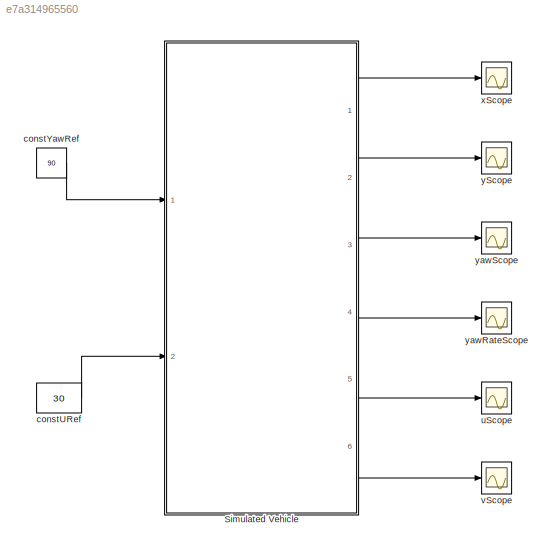
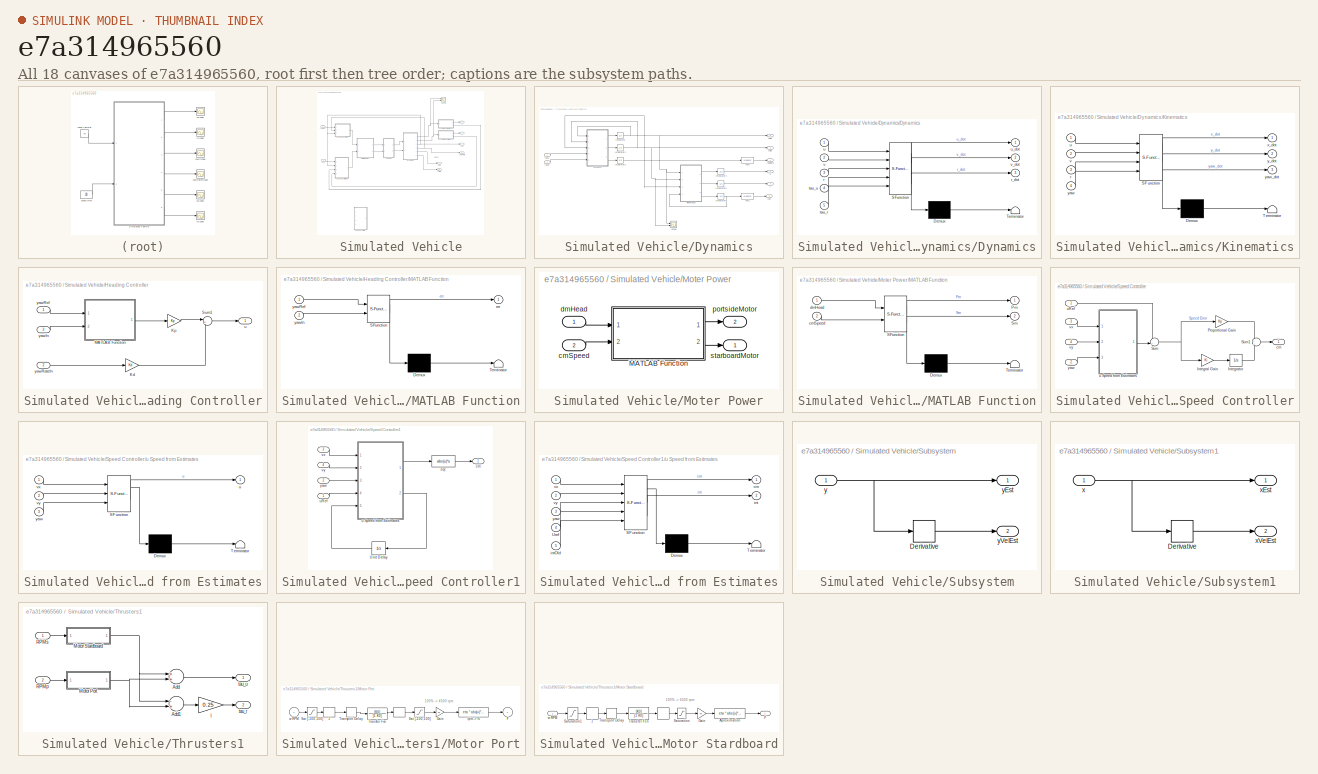
[diagram: thumbnail index - all 18 canvases of the model, root first then tree order]
MODEL slx_e7a314965560
KIND model
CONFIG AbsTol = auto
CONFIG EnableMultiTasking = off
CONFIG FixedStep = auto
CONFIG MaxStep = auto
CONFIG MinStep = auto
CONFIG RelTol = 1e-3
CONFIG SampleTimeConstraint = Unconstrained
CONFIG Solver = VariableStepAuto
CONFIG SolverName = VariableStepAuto
CONFIG StartTime = 0.0
CONFIG StopTime = 720
BLOCK [SubSystem] Simulated Vehicle
  Ports = [2, 6]
  RequestExecContextInheritance = off
  Variant = off
BLOCK [SubSystem] Simulated Vehicle/Dynamics
  Ports = [2, 6]
  RequestExecContextInheritance = off
  Variant = off
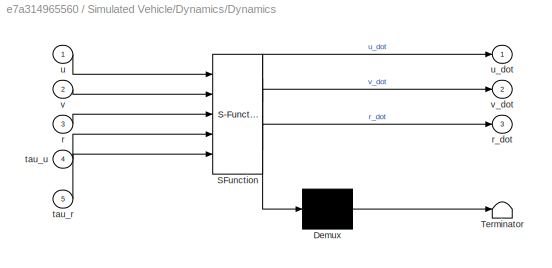
BLOCK [SubSystem] Simulated Vehicle/Dynamics/Dynamics
  ErrorFcn = Stateflow.Translate.translate
  PermitHierarchicalResolution = ExplicitOnly
  Ports = [5, 3]
  RequestExecContextInheritance = off
  SFBlockType = MATLAB Function
  TreatAsAtomicUnit = on
  Variant = off
BLOCK [Demux] Simulated Vehicle/Dynamics/Dynamics/ Demux 
  Outputs = 1
  Ports = [1, 1]
BLOCK [S-Function] Simulated Vehicle/Dynamics/Dynamics/ SFunction 
  EnableBusSupport = on
  FunctionName = sf_sfun
  PortCounts = [5 4]
  Ports = [5, 4]
  SFcnIsStateOwnerBlock = off
  SFunctionDeploymentMode = off
  Tag = Stateflow S-Function MyMedusaInnerLoop 2
BLOCK [Terminator] Simulated Vehicle/Dynamics/Dynamics/ Terminator 
BLOCK [Inport] Simulated Vehicle/Dynamics/Dynamics/r
  IconDisplay = Port number
  Port = 3
BLOCK [Outport] Simulated Vehicle/Dynamics/Dynamics/r_dot
  IconDisplay = Port number
  Port = 3
BLOCK [Inport] Simulated Vehicle/Dynamics/Dynamics/tau_r
  IconDisplay = Port number
  Port = 5
BLOCK [Inport] Simulated Vehicle/Dynamics/Dynamics/tau_u
  IconDisplay = Port number
  Port = 4
BLOCK [Inport] Simulated Vehicle/Dynamics/Dynamics/u
  IconDisplay = Port number
BLOCK [Outport] Simulated Vehicle/Dynamics/Dynamics/u_dot
  IconDisplay = Port number
BLOCK [Inport] Simulated Vehicle/Dynamics/Dynamics/v
  IconDisplay = Port number
  Port = 2
BLOCK [Outport] Simulated Vehicle/Dynamics/Dynamics/v_dot
  IconDisplay = Port number
  Port = 2
BLOCK [Fcn] Simulated Vehicle/Dynamics/Fcn1
  Expr = u*180/pi
BLOCK [Fcn] Simulated Vehicle/Dynamics/Fcn2
  Expr = u*180/pi
BLOCK [Integrator] Simulated Vehicle/Dynamics/Integrator
  Ports = [1, 1]
BLOCK [Integrator] Simulated Vehicle/Dynamics/Integrator1
  Ports = [1, 1]
BLOCK [Integrator] Simulated Vehicle/Dynamics/Integrator2
  Ports = [1, 1]
BLOCK [Integrator] Simulated Vehicle/Dynamics/Integrator4
  Ports = [1, 1]
BLOCK [Integrator] Simulated Vehicle/Dynamics/Integrator5
  Ports = [1, 1]
BLOCK [Integrator] Simulated Vehicle/Dynamics/Integrator6
  Ports = [1, 1]
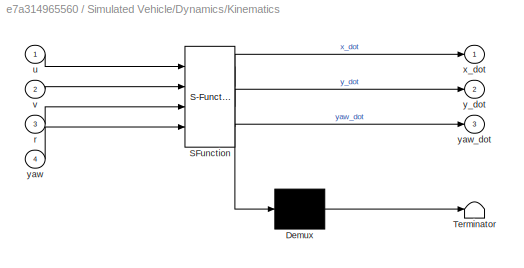
BLOCK [SubSystem] Simulated Vehicle/Dynamics/Kinematics
  ErrorFcn = Stateflow.Translate.translate
  PermitHierarchicalResolution = ExplicitOnly
  Ports = [4, 3]
  RequestExecContextInheritance = off
  SFBlockType = MATLAB Function
  TreatAsAtomicUnit = on
  Variant = off
BLOCK [Demux] Simulated Vehicle/Dynamics/Kinematics/ Demux 
  Outputs = 1
  Ports = [1, 1]
BLOCK [S-Function] Simulated Vehicle/Dynamics/Kinematics/ SFunction 
  EnableBusSupport = on
  FunctionName = sf_sfun
  PortCounts = [4 4]
  Ports = [4, 4]
  SFcnIsStateOwnerBlock = off
  SFunctionDeploymentMode = off
  Tag = Stateflow S-Function MyMedusaInnerLoop 1
BLOCK [Terminator] Simulated Vehicle/Dynamics/Kinematics/ Terminator 
BLOCK [Inport] Simulated Vehicle/Dynamics/Kinematics/r
  IconDisplay = Port number
  Port = 3
BLOCK [Inport] Simulated Vehicle/Dynamics/Kinematics/u
  IconDisplay = Port number
BLOCK [Inport] Simulated Vehicle/Dynamics/Kinematics/v
  IconDisplay = Port number
  Port = 2
BLOCK [Outport] Simulated Vehicle/Dynamics/Kinematics/x_dot
  IconDisplay = Port number
BLOCK [Outport] Simulated Vehicle/Dynamics/Kinematics/y_dot
  IconDisplay = Port number
  Port = 2
BLOCK [Inport] Simulated Vehicle/Dynamics/Kinematics/yaw
  IconDisplay = Port number
  Port = 4
BLOCK [Outport] Simulated Vehicle/Dynamics/Kinematics/yaw_dot
  IconDisplay = Port number
  Port = 3
BLOCK [Scope] Simulated Vehicle/Dynamics/Scope
  NumInputPorts = 2
  Ports = [2]
  ScopeSpecificationString = Simulink.scopes.TimeScopeBlockCfg('CurrentConfiguration', extmgr.ConfigurationSet(extmgr.Configuration('Core','General UI',true),extmgr.Configuration('Core','Source UI',true),extmgr.Configuration('Sources','WiredSimulink',true,'DataLoggingVariableName','ScopeData1'),extmgr.Configuration('Visuals','Time Domain',true,'SerializedDisplays',{struct('MinYLimReal','-0.35776','MaxYLimReal','1.16677','YLab...<+1438ch>
BLOCK [Inport] Simulated Vehicle/Dynamics/tauR
  IconDisplay = Port number
  Port = 2
BLOCK [Inport] Simulated Vehicle/Dynamics/tauU
  IconDisplay = Port number
BLOCK [Outport] Simulated Vehicle/Dynamics/uSim
  IconDisplay = Port number
  Port = 5
BLOCK [Outport] Simulated Vehicle/Dynamics/vSim
  IconDisplay = Port number
  Port = 6
BLOCK [Outport] Simulated Vehicle/Dynamics/x
  IconDisplay = Port number
BLOCK [Outport] Simulated Vehicle/Dynamics/y
  IconDisplay = Port number
  Port = 2
BLOCK [Outport] Simulated Vehicle/Dynamics/yaw
  IconDisplay = Port number
  Port = 3
BLOCK [Outport] Simulated Vehicle/Dynamics/yawRate
  IconDisplay = Port number
  Port = 4
BLOCK [SubSystem] Simulated Vehicle/Heading Controller
  Ports = [3, 1]
  RequestExecContextInheritance = off
  Variant = off
BLOCK [Gain] Simulated Vehicle/Heading Controller/Kd
  Gain = Kd
  OutDataTypeStr = Inherit: Inherit via internal rule
  ParamDataTypeStr = Inherit: Inherit via internal rule
  SaturateOnIntegerOverflow = off
BLOCK [Gain] Simulated Vehicle/Heading Controller/Kp
  Gain = Kp
  OutDataTypeStr = Inherit: Inherit via internal rule
  ParamDataTypeStr = Inherit: Inherit via internal rule
  SaturateOnIntegerOverflow = off
BLOCK [SubSystem] Simulated Vehicle/Heading Controller/MATLAB Function
  ErrorFcn = Stateflow.Translate.translate
  PermitHierarchicalResolution = ExplicitOnly
  Ports = [2, 1]
  RequestExecContextInheritance = off
  SFBlockType = MATLAB Function
  TreatAsAtomicUnit = on
  Variant = off
BLOCK [Demux] Simulated Vehicle/Heading Controller/MATLAB Function/ Demux 
  Outputs = 1
  Ports = [1, 1]
BLOCK [S-Function] Simulated Vehicle/Heading Controller/MATLAB Function/ SFunction 
  EnableBusSupport = on
  FunctionName = sf_sfun
  PortCounts = [2 2]
  Ports = [2, 2]
  SFcnIsStateOwnerBlock = off
  SFunctionDeploymentMode = off
  Tag = Stateflow S-Function MyMedusaInnerLoop 5
BLOCK [Terminator] Simulated Vehicle/Heading Controller/MATLAB Function/ Terminator 
BLOCK [Outport] Simulated Vehicle/Heading Controller/MATLAB Function/err
  IconDisplay = Port number
BLOCK [Inport] Simulated Vehicle/Heading Controller/MATLAB Function/yawIn
  IconDisplay = Port number
  Port = 2
BLOCK [Inport] Simulated Vehicle/Heading Controller/MATLAB Function/yawRef
  IconDisplay = Port number
BLOCK [Sum] Simulated Vehicle/Heading Controller/Sum1
  IconShape = round
  InputSameDT = off
  Inputs = |+-
  OutDataTypeStr = Inherit: Inherit via internal rule
  Ports = [2, 1]
  SaturateOnIntegerOverflow = off
BLOCK [Outport] Simulated Vehicle/Heading Controller/u
  IconDisplay = Port number
BLOCK [Inport] Simulated Vehicle/Heading Controller/yawIn
  IconDisplay = Port number
  Port = 3
BLOCK [Inport] Simulated Vehicle/Heading Controller/yawRateIn
  IconDisplay = Port number
  Port = 2
BLOCK [Inport] Simulated Vehicle/Heading Controller/yawRef
  IconDisplay = Port number
BLOCK [SubSystem] Simulated Vehicle/Moter Power
  Ports = [2, 2]
  RequestExecContextInheritance = off
  Variant = off
BLOCK [SubSystem] Simulated Vehicle/Moter Power/MATLAB Function
  ErrorFcn = Stateflow.Translate.translate
  PermitHierarchicalResolution = ExplicitOnly
  Ports = [2, 2]
  RequestExecContextInheritance = off
  SFBlockType = MATLAB Function
  TreatAsAtomicUnit = on
  Variant = off
BLOCK [Demux] Simulated Vehicle/Moter Power/MATLAB Function/ Demux 
  Outputs = 1
  Ports = [1, 1]
BLOCK [S-Function] Simulated Vehicle/Moter Power/MATLAB Function/ SFunction 
  EnableBusSupport = on
  FunctionName = sf_sfun
  PortCounts = [2 3]
  Ports = [2, 3]
  SFcnIsStateOwnerBlock = off
  SFunctionDeploymentMode = off
  Tag = Stateflow S-Function MyMedusaInnerLoop 4
BLOCK [Terminator] Simulated Vehicle/Moter Power/MATLAB Function/ Terminator 
BLOCK [Outport] Simulated Vehicle/Moter Power/MATLAB Function/Pm
  IconDisplay = Port number
BLOCK [Outport] Simulated Vehicle/Moter Power/MATLAB Function/Sm
  IconDisplay = Port number
  Port = 2
BLOCK [Inport] Simulated Vehicle/Moter Power/MATLAB Function/cmSpeed
  IconDisplay = Port number
  Port = 2
BLOCK [Inport] Simulated Vehicle/Moter Power/MATLAB Function/dmHead
  IconDisplay = Port number
BLOCK [Inport] Simulated Vehicle/Moter Power/cmSpeed
  IconDisplay = Port number
  Port = 2
BLOCK [Inport] Simulated Vehicle/Moter Power/dmHead
  IconDisplay = Port number
BLOCK [Outport] Simulated Vehicle/Moter Power/portsideMotor
  IconDisplay = Port number
  Port = 2
BLOCK [Outport] Simulated Vehicle/Moter Power/starboardMotor
  IconDisplay = Port number
BLOCK [Scope] Simulated Vehicle/Scope
  NumInputPorts = 2
  Ports = [2]
  ScopeSpecificationString = Simulink.scopes.TimeScopeBlockCfg('CurrentConfiguration', extmgr.ConfigurationSet(extmgr.Configuration('Core','General UI',true),extmgr.Configuration('Core','Source UI',true),extmgr.Configuration('Sources','WiredSimulink',true,'DataLoggingVariableName','ScopeData2'),extmgr.Configuration('Visuals','Time Domain',true,'SerializedDisplays',{struct('MinYLimReal','-90.83707','MaxYLimReal','817.53361','Y...<+1409ch>
BLOCK [SubSystem] Simulated Vehicle/Speed Controller
  Commented = on
  Ports = [4, 1]
  RequestExecContextInheritance = off
  Variant = off
BLOCK [Gain] Simulated Vehicle/Speed Controller/Integral Gain
  Gain = Ki
  OutDataTypeStr = Inherit: Inherit via internal rule
  ParamDataTypeStr = Inherit: Inherit via internal rule
  SaturateOnIntegerOverflow = off
BLOCK [Integrator] Simulated Vehicle/Speed Controller/Integrator
  Ports = [1, 1]
BLOCK [Gain] Simulated Vehicle/Speed Controller/Proportional Gain
  Gain = Kp
  OutDataTypeStr = Inherit: Inherit via internal rule
  ParamDataTypeStr = Inherit: Inherit via internal rule
  SaturateOnIntegerOverflow = off
BLOCK [Sum] Simulated Vehicle/Speed Controller/Sum
  IconShape = round
  InputSameDT = off
  Inputs = -+|
  OutDataTypeStr = Inherit: Inherit via internal rule
  Ports = [2, 1]
  SaturateOnIntegerOverflow = off
BLOCK [Sum] Simulated Vehicle/Speed Controller/Sum1
  IconShape = round
  InputSameDT = off
  Inputs = +|+
  OutDataTypeStr = Inherit: Inherit via internal rule
  Ports = [2, 1]
  SaturateOnIntegerOverflow = off
BLOCK [Outport] Simulated Vehicle/Speed Controller/cm
  IconDisplay = Port number
BLOCK [SubSystem] Simulated Vehicle/Speed Controller/u Speed from Estimates
  ErrorFcn = Stateflow.Translate.translate
  PermitHierarchicalResolution = ExplicitOnly
  Ports = [3, 1]
  RequestExecContextInheritance = off
  SFBlockType = MATLAB Function
  TreatAsAtomicUnit = on
  Variant = off
BLOCK [Demux] Simulated Vehicle/Speed Controller/u Speed from Estimates/ Demux 
  Outputs = 1
  Ports = [1, 1]
BLOCK [S-Function] Simulated Vehicle/Speed Controller/u Speed from Estimates/ SFunction 
  EnableBusSupport = on
  FunctionName = sf_sfun
  PortCounts = [3 2]
  Ports = [3, 2]
  SFcnIsStateOwnerBlock = off
  SFunctionDeploymentMode = off
  Tag = Stateflow S-Function MyMedusaInnerLoop 6
BLOCK [Terminator] Simulated Vehicle/Speed Controller/u Speed from Estimates/ Terminator 
BLOCK [Outport] Simulated Vehicle/Speed Controller/u Speed from Estimates/u
  IconDisplay = Port number
BLOCK [Inport] Simulated Vehicle/Speed Controller/u Speed from Estimates/vx
  IconDisplay = Port number
BLOCK [Inport] Simulated Vehicle/Speed Controller/u Speed from Estimates/vy
  IconDisplay = Port number
  Port = 2
BLOCK [Inport] Simulated Vehicle/Speed Controller/u Speed from Estimates/yaw
  IconDisplay = Port number
  Port = 3
BLOCK [Inport] Simulated Vehicle/Speed Controller/uRef
  IconDisplay = Port number
BLOCK [Inport] Simulated Vehicle/Speed Controller/vx
  IconDisplay = Port number
  Port = 3
BLOCK [Inport] Simulated Vehicle/Speed Controller/vy
  IconDisplay = Port number
  Port = 4
BLOCK [Inport] Simulated Vehicle/Speed Controller/yaw
  IconDisplay = Port number
  Port = 2
BLOCK [SubSystem] Simulated Vehicle/Speed Controller1
  Ports = [4, 1]
  RequestExecContextInheritance = off
  Variant = off
BLOCK [UnitDelay] Simulated Vehicle/Speed Controller1/Unit Delay
  SampleTime = -1
BLOCK [Outport] Simulated Vehicle/Speed Controller1/cm
  IconDisplay = Port number
BLOCK [Fcn] Simulated Vehicle/Speed Controller1/sqr
  Expr = abs(u)*u
BLOCK [SubSystem] Simulated Vehicle/Speed Controller1/u Speed from Estimates
  ErrorFcn = Stateflow.Translate.translate
  PermitHierarchicalResolution = ExplicitOnly
  Ports = [5, 2]
  RequestExecContextInheritance = off
  SFBlockType = MATLAB Function
  TreatAsAtomicUnit = on
  Variant = off
BLOCK [Demux] Simulated Vehicle/Speed Controller1/u Speed from Estimates/ Demux 
  Outputs = 1
  Ports = [1, 1]
BLOCK [S-Function] Simulated Vehicle/Speed Controller1/u Speed from Estimates/ SFunction 
  EnableBusSupport = on
  FunctionName = sf_sfun
  Parameters = KSat,Ki,Kp
  PortCounts = [5 3]
  Ports = [5, 3]
  SFcnIsStateOwnerBlock = off
  SFunctionDeploymentMode = off
  Tag = Stateflow S-Function MyMedusaInnerLoop 3
BLOCK [Terminator] Simulated Vehicle/Speed Controller1/u Speed from Estimates/ Terminator 
BLOCK [Inport] Simulated Vehicle/Speed Controller1/u Speed from Estimates/Uref
  IconDisplay = Port number
  Port = 4
BLOCK [Outport] Simulated Vehicle/Speed Controller1/u Speed from Estimates/cm
  IconDisplay = Port number
BLOCK [Outport] Simulated Vehicle/Speed Controller1/u Speed from Estimates/int
  IconDisplay = Port number
  Port = 2
BLOCK [Inport] Simulated Vehicle/Speed Controller1/u Speed from Estimates/intOld
  IconDisplay = Port number
  Port = 5
BLOCK [Inport] Simulated Vehicle/Speed Controller1/u Speed from Estimates/vx
  IconDisplay = Port number
BLOCK [Inport] Simulated Vehicle/Speed Controller1/u Speed from Estimates/vy
  IconDisplay = Port number
  Port = 2
BLOCK [Inport] Simulated Vehicle/Speed Controller1/u Speed from Estimates/yaw
  IconDisplay = Port number
  Port = 3
BLOCK [Inport] Simulated Vehicle/Speed Controller1/uRef
  IconDisplay = Port number
BLOCK [Inport] Simulated Vehicle/Speed Controller1/vx
  IconDisplay = Port number
  Port = 3
BLOCK [Inport] Simulated Vehicle/Speed Controller1/vy
  IconDisplay = Port number
  Port = 4
BLOCK [Inport] Simulated Vehicle/Speed Controller1/yaw
  IconDisplay = Port number
  Port = 2
BLOCK [SubSystem] Simulated Vehicle/Subsystem
  Ports = [1, 2]
  RequestExecContextInheritance = off
  Variant = off
BLOCK [Derivative] Simulated Vehicle/Subsystem/Derivative
BLOCK [Inport] Simulated Vehicle/Subsystem/y
  IconDisplay = Port number
BLOCK [Outport] Simulated Vehicle/Subsystem/yEst
  IconDisplay = Port number
BLOCK [Outport] Simulated Vehicle/Subsystem/yVelEst
  IconDisplay = Port number
  Port = 2
BLOCK [SubSystem] Simulated Vehicle/Subsystem1
  Ports = [1, 2]
  RequestExecContextInheritance = off
  Variant = off
BLOCK [Derivative] Simulated Vehicle/Subsystem1/Derivative
BLOCK [Inport] Simulated Vehicle/Subsystem1/x
  IconDisplay = Port number
BLOCK [Outport] Simulated Vehicle/Subsystem1/xEst
  IconDisplay = Port number
BLOCK [Outport] Simulated Vehicle/Subsystem1/xVelEst
  IconDisplay = Port number
  Port = 2
BLOCK [SubSystem] Simulated Vehicle/Thrusters1
  Ports = [2, 2]
  RequestExecContextInheritance = off
  Variant = off
BLOCK [Sum] Simulated Vehicle/Thrusters1/Add
  InputSameDT = off
  OutDataTypeStr = Inherit: Inherit via internal rule
  Ports = [2, 1]
  SaturateOnIntegerOverflow = off
BLOCK [Sum] Simulated Vehicle/Thrusters1/Add1
  InputSameDT = off
  Inputs = -+
  OutDataTypeStr = Inherit: Inherit via internal rule
  Ports = [2, 1]
  SaturateOnIntegerOverflow = off
BLOCK [SubSystem] Simulated Vehicle/Thrusters1/Motor Port
  Ports = [1, 1]
  RequestExecContextInheritance = off
  Variant = off
BLOCK [Rounding] Simulated Vehicle/Thrusters1/Motor Port/  
  Operator = round
BLOCK [Rounding] Simulated Vehicle/Thrusters1/Motor Port/  1
  Operator = round
BLOCK [Outport] Simulated Vehicle/Thrusters1/Motor Port/F
  IconDisplay = Port number
BLOCK [Gain] Simulated Vehicle/Thrusters1/Motor Port/Gain
  Gain = 45
  OutDataTypeStr = Inherit: Inherit via internal rule
  ParamDataTypeStr = Inherit: Inherit via internal rule
  SaturateOnIntegerOverflow = off
BLOCK [Saturate] Simulated Vehicle/Thrusters1/Motor Port/Sat [-100,100]
  InputPortMap = u0
  LowerLimit = -100
  Ports = [1, 1]
  UpperLimit = 100
BLOCK [Saturate] Simulated Vehicle/Thrusters1/Motor Port/Sat [-100,100] 
  InputPortMap = u0
  LowerLimit = -100
  Ports = [1, 1]
  UpperLimit = 100
BLOCK [TransferFcn] Simulated Vehicle/Thrusters1/Motor Port/Transfer Fcn
  Denominator = [1 K0]
  Numerator = [K0]
BLOCK [TransportDelay] Simulated Vehicle/Thrusters1/Motor Port/Transport Delay
  DelayTime = tau
  Ports = [1, 1]
BLOCK [Fcn] Simulated Vehicle/Thrusters1/Motor Port/rpm -> N
  Expr = eta * abs(u)* u
BLOCK [Inport] Simulated Vehicle/Thrusters1/Motor Port/w RPM
  IconDisplay = Port number
BLOCK [SubSystem] Simulated Vehicle/Thrusters1/Motor Stardboard
  Ports = [1, 1]
  RequestExecContextInheritance = off
  Variant = off
BLOCK [Rounding] Simulated Vehicle/Thrusters1/Motor Stardboard/  
  Operator = round
BLOCK [Rounding] Simulated Vehicle/Thrusters1/Motor Stardboard/  1
  Operator = round
BLOCK [Fcn] Simulated Vehicle/Thrusters1/Motor Stardboard/Aproximation
  Expr = eta * abs(u)* u
BLOCK [Outport] Simulated Vehicle/Thrusters1/Motor Stardboard/F
  IconDisplay = Port number
BLOCK [Gain] Simulated Vehicle/Thrusters1/Motor Stardboard/Gain
  Gain = 45
  OutDataTypeStr = Inherit: Inherit via internal rule
  ParamDataTypeStr = Inherit: Inherit via internal rule
  SaturateOnIntegerOverflow = off
BLOCK [Saturate] Simulated Vehicle/Thrusters1/Motor Stardboard/Saturation
  InputPortMap = u0
  LowerLimit = -100
  Ports = [1, 1]
  UpperLimit = 100
BLOCK [Saturate] Simulated Vehicle/Thrusters1/Motor Stardboard/Saturation1
  InputPortMap = u0
  LowerLimit = -100
  Ports = [1, 1]
  UpperLimit = 100
BLOCK [TransferFcn] Simulated Vehicle/Thrusters1/Motor Stardboard/Transfer Fcn
  Denominator = [1 K0]
  Numerator = [K0]
BLOCK [TransportDelay] Simulated Vehicle/Thrusters1/Motor Stardboard/Transport Delay
  DelayTime = tau
  Ports = [1, 1]
BLOCK [Inport] Simulated Vehicle/Thrusters1/Motor Stardboard/w RPM
  IconDisplay = Port number
BLOCK [Inport] Simulated Vehicle/Thrusters1/RPMp
  IconDisplay = Port number
  Port = 2
BLOCK [Inport] Simulated Vehicle/Thrusters1/RPMs
  IconDisplay = Port number
BLOCK [Gain] Simulated Vehicle/Thrusters1/l
  Gain = 0.25
  OutDataTypeStr = Inherit: Inherit via internal rule
  ParamDataTypeStr = Inherit: Inherit via internal rule
  SaturateOnIntegerOverflow = off
BLOCK [Outport] Simulated Vehicle/Thrusters1/tau_r
  IconDisplay = Port number
  Port = 2
BLOCK [Outport] Simulated Vehicle/Thrusters1/tau_u
  IconDisplay = Port number
BLOCK [Inport] Simulated Vehicle/uRef
  IconDisplay = Port number
  Port = 2
BLOCK [Outport] Simulated Vehicle/uSim
  IconDisplay = Port number
  Port = 5
BLOCK [Outport] Simulated Vehicle/vSim
  IconDisplay = Port number
  Port = 6
BLOCK [Outport] Simulated Vehicle/x
  IconDisplay = Port number
BLOCK [Outport] Simulated Vehicle/y
  IconDisplay = Port number
  Port = 2
BLOCK [Outport] Simulated Vehicle/yaw
  IconDisplay = Port number
  Port = 3
BLOCK [Outport] Simulated Vehicle/yawRate
  IconDisplay = Port number
  Port = 4
BLOCK [Inport] Simulated Vehicle/yawRef
  IconDisplay = Port number
BLOCK [Constant] constURef
  Value = 30
BLOCK [Constant] constYawRef
  Value = 90
BLOCK [Scope] uScope
  NumInputPorts = 1
  Ports = [1]
  ScopeSpecificationString = Simulink.scopes.TimeScopeBlockCfg('CurrentConfiguration', extmgr.ConfigurationSet(extmgr.Configuration('Core','General UI',true),extmgr.Configuration('Core','Source UI',true),extmgr.Configuration('Sources','WiredSimulink',true,'DataLoggingVariableName','ScopeData4','DataLoggingLimitDataPoints',true,'DataLoggingSaveFormat','Array','DataLoggingDecimation','1','DataLoggingDecimateData',true),extmgr.C...<+1503ch>
BLOCK [Scope] vScope
  NumInputPorts = 1
  Ports = [1]
  ScopeSpecificationString = Simulink.scopes.TimeScopeBlockCfg('CurrentConfiguration', extmgr.ConfigurationSet(extmgr.Configuration('Core','General UI',true),extmgr.Configuration('Core','Source UI',true),extmgr.Configuration('Sources','WiredSimulink',true,'DataLoggingVariableName','ScopeData5','DataLoggingLimitDataPoints',true,'DataLoggingSaveFormat','Array','DataLoggingDecimation','1','DataLoggingDecimateData',true),extmgr.C...<+1499ch>
BLOCK [Scope] xScope
  NumInputPorts = 1
  Ports = [1]
  ScopeSpecificationString = Simulink.scopes.TimeScopeBlockCfg('CurrentConfiguration', extmgr.ConfigurationSet(extmgr.Configuration('Core','General UI',true),extmgr.Configuration('Core','Source UI',true),extmgr.Configuration('Sources','WiredSimulink',true,'DataLoggingLimitDataPoints',true,'DataLoggingSaveFormat','Array','DataLoggingDecimation','1','DataLoggingDecimateData',true),extmgr.Configuration('Visuals','Time Domain',tr...<+1530ch>
BLOCK [Scope] yScope
  NumInputPorts = 1
  Ports = [1]
  ScopeSpecificationString = Simulink.scopes.TimeScopeBlockCfg('CurrentConfiguration', extmgr.ConfigurationSet(extmgr.Configuration('Core','General UI',true),extmgr.Configuration('Core','Source UI',true),extmgr.Configuration('Sources','WiredSimulink',true,'DataLoggingVariableName','ScopeData1','DataLoggingLimitDataPoints',true,'DataLoggingSaveFormat','Array','DataLoggingDecimation','1','DataLoggingDecimateData',true),extmgr.C...<+1513ch>
BLOCK [Scope] yawRateScope
  NumInputPorts = 1
  Ports = [1]
  ScopeSpecificationString = Simulink.scopes.TimeScopeBlockCfg('CurrentConfiguration', extmgr.ConfigurationSet(extmgr.Configuration('Core','General UI',true),extmgr.Configuration('Core','Source UI',true),extmgr.Configuration('Sources','WiredSimulink',true,'DataLoggingVariableName','ScopeData3','DataLoggingLimitDataPoints',true,'DataLoggingSaveFormat','Array','DataLoggingDecimation','1','DataLoggingDecimateData',true),extmgr.C...<+1507ch>
BLOCK [Scope] yawScope
  NumInputPorts = 1
  Ports = [1]
  ScopeSpecificationString = Simulink.scopes.TimeScopeBlockCfg('CurrentConfiguration', extmgr.ConfigurationSet(extmgr.Configuration('Core','General UI',true),extmgr.Configuration('Core','Source UI',true),extmgr.Configuration('Sources','WiredSimulink',true,'DataLoggingVariableName','ScopeData2','DataLoggingLimitDataPoints',true,'DataLoggingSaveFormat','Array','DataLoggingDecimation','1','DataLoggingDecimateData',true),extmgr.C...<+1538ch>
ANNOTATION Simulated Vehicle: Sim Only
ANNOTATION Simulated Vehicle/Thrusters1/Motor Port: 100% -> 4500 rpm
ANNOTATION Simulated Vehicle/Thrusters1/Motor Stardboard: 100% -> 4500 rpm
LINE Simulated Vehicle/Dynamics/Dynamics:1 -> Simulated Vehicle/Dynamics/Integrator:1
LINE Simulated Vehicle/Dynamics/Dynamics:2 -> Simulated Vehicle/Dynamics/Integrator1:1
LINE Simulated Vehicle/Dynamics/Dynamics:3 -> Simulated Vehicle/Dynamics/Integrator2:1
LINE Simulated Vehicle/Dynamics/Fcn1:1 -> Simulated Vehicle/Dynamics/yaw:1
LINE Simulated Vehicle/Dynamics/Fcn2:1 -> Simulated Vehicle/Dynamics/yawRate:1
NET Simulated Vehicle/Dynamics/Integrator1:1 -> Simulated Vehicle/Dynamics/Dynamics:2, Simulated Vehicle/Dynamics/Kinematics:2, Simulated Vehicle/Dynamics/Scope:2, Simulated Vehicle/Dynamics/vSim:1
NET Simulated Vehicle/Dynamics/Integrator2:1 -> Simulated Vehicle/Dynamics/Dynamics:3, Simulated Vehicle/Dynamics/Fcn2:1, Simulated Vehicle/Dynamics/Kinematics:3
LINE Simulated Vehicle/Dynamics/Integrator4:1 -> Simulated Vehicle/Dynamics/x:1
LINE Simulated Vehicle/Dynamics/Integrator5:1 -> Simulated Vehicle/Dynamics/y:1
NET Simulated Vehicle/Dynamics/Integrator6:1 -> Simulated Vehicle/Dynamics/Fcn1:1, Simulated Vehicle/Dynamics/Kinematics:4
NET Simulated Vehicle/Dynamics/Integrator:1 -> Simulated Vehicle/Dynamics/Dynamics:1, Simulated Vehicle/Dynamics/Kinematics:1, Simulated Vehicle/Dynamics/Scope:1, Simulated Vehicle/Dynamics/uSim:1
LINE Simulated Vehicle/Dynamics/Kinematics:1 -> Simulated Vehicle/Dynamics/Integrator4:1
LINE Simulated Vehicle/Dynamics/Kinematics:2 -> Simulated Vehicle/Dynamics/Integrator5:1
LINE Simulated Vehicle/Dynamics/Kinematics:3 -> Simulated Vehicle/Dynamics/Integrator6:1
LINE Simulated Vehicle/Dynamics/tauR:1 -> Simulated Vehicle/Dynamics/Dynamics:5
LINE Simulated Vehicle/Dynamics/tauU:1 -> Simulated Vehicle/Dynamics/Dynamics:4
NET Simulated Vehicle/Dynamics:1 -> Simulated Vehicle/Scope:1, Simulated Vehicle/Subsystem1:1
NET Simulated Vehicle/Dynamics:2 -> Simulated Vehicle/Scope:2, Simulated Vehicle/Subsystem:1
NET Simulated Vehicle/Dynamics:3 -> Simulated Vehicle/Heading Controller:3, Simulated Vehicle/Speed Controller1:2, Simulated Vehicle/yaw:1
NET Simulated Vehicle/Dynamics:4 -> Simulated Vehicle/Heading Controller:2, Simulated Vehicle/yawRate:1
LINE Simulated Vehicle/Dynamics:5 -> Simulated Vehicle/uSim:1
LINE Simulated Vehicle/Dynamics:6 -> Simulated Vehicle/vSim:1
LINE Simulated Vehicle/Heading Controller/Kd:1 -> Simulated Vehicle/Heading Controller/Sum1:2
LINE Simulated Vehicle/Heading Controller/Kp:1 -> Simulated Vehicle/Heading Controller/Sum1:1
LINE Simulated Vehicle/Heading Controller/MATLAB Function:1 -> Simulated Vehicle/Heading Controller/Kp:1
LINE Simulated Vehicle/Heading Controller/Sum1:1 -> Simulated Vehicle/Heading Controller/u:1
LINE Simulated Vehicle/Heading Controller/yawIn:1 -> Simulated Vehicle/Heading Controller/MATLAB Function:2
LINE Simulated Vehicle/Heading Controller/yawRateIn:1 -> Simulated Vehicle/Heading Controller/Kd:1
LINE Simulated Vehicle/Heading Controller/yawRef:1 -> Simulated Vehicle/Heading Controller/MATLAB Function:1
LINE Simulated Vehicle/Heading Controller:1 -> Simulated Vehicle/Moter Power:1
LINE Simulated Vehicle/Moter Power/MATLAB Function:1 -> Simulated Vehicle/Moter Power/portsideMotor:1
LINE Simulated Vehicle/Moter Power/MATLAB Function:2 -> Simulated Vehicle/Moter Power/starboardMotor:1
LINE Simulated Vehicle/Moter Power/cmSpeed:1 -> Simulated Vehicle/Moter Power/MATLAB Function:2
LINE Simulated Vehicle/Moter Power/dmHead:1 -> Simulated Vehicle/Moter Power/MATLAB Function:1
LINE Simulated Vehicle/Moter Power:1 -> Simulated Vehicle/Thrusters1:1
LINE Simulated Vehicle/Moter Power:2 -> Simulated Vehicle/Thrusters1:2
LINE Simulated Vehicle/Speed Controller/Integral Gain:1 -> Simulated Vehicle/Speed Controller/Integrator:1
LINE Simulated Vehicle/Speed Controller/Integrator:1 -> Simulated Vehicle/Speed Controller/Sum1:2
LINE Simulated Vehicle/Speed Controller/Proportional Gain:1 -> Simulated Vehicle/Speed Controller/Sum1:1
LINE Simulated Vehicle/Speed Controller/Sum1:1 -> Simulated Vehicle/Speed Controller/cm:1
NET Simulated Vehicle/Speed Controller/Sum:1 -> Simulated Vehicle/Speed Controller/Integral Gain:1, Simulated Vehicle/Speed Controller/Proportional Gain:1
LINE Simulated Vehicle/Speed Controller/u Speed from Estimates:1 -> Simulated Vehicle/Speed Controller/Sum:2
LINE Simulated Vehicle/Speed Controller/uRef:1 -> Simulated Vehicle/Speed Controller/Sum:1
LINE Simulated Vehicle/Speed Controller/vx:1 -> Simulated Vehicle/Speed Controller/u Speed from Estimates:1
LINE Simulated Vehicle/Speed Controller/vy:1 -> Simulated Vehicle/Speed Controller/u Speed from Estimates:2
LINE Simulated Vehicle/Speed Controller/yaw:1 -> Simulated Vehicle/Speed Controller/u Speed from Estimates:3
LINE Simulated Vehicle/Speed Controller1/Unit Delay:1 -> Simulated Vehicle/Speed Controller1/u Speed from Estimates:5
LINE Simulated Vehicle/Speed Controller1/sqr:1 -> Simulated Vehicle/Speed Controller1/cm:1
LINE Simulated Vehicle/Speed Controller1/u Speed from Estimates:1 -> Simulated Vehicle/Speed Controller1/sqr:1
LINE Simulated Vehicle/Speed Controller1/u Speed from Estimates:2 -> Simulated Vehicle/Speed Controller1/Unit Delay:1
LINE Simulated Vehicle/Speed Controller1/uRef:1 -> Simulated Vehicle/Speed Controller1/u Speed from Estimates:4
LINE Simulated Vehicle/Speed Controller1/vx:1 -> Simulated Vehicle/Speed Controller1/u Speed from Estimates:1
LINE Simulated Vehicle/Speed Controller1/vy:1 -> Simulated Vehicle/Speed Controller1/u Speed from Estimates:2
LINE Simulated Vehicle/Speed Controller1/yaw:1 -> Simulated Vehicle/Speed Controller1/u Speed from Estimates:3
LINE Simulated Vehicle/Speed Controller1:1 -> Simulated Vehicle/Moter Power:2
LINE Simulated Vehicle/Subsystem/Derivative:1 -> Simulated Vehicle/Subsystem/yVelEst:1
NET Simulated Vehicle/Subsystem/y:1 -> Simulated Vehicle/Subsystem/Derivative:1, Simulated Vehicle/Subsystem/yEst:1
LINE Simulated Vehicle/Subsystem1/Derivative:1 -> Simulated Vehicle/Subsystem1/xVelEst:1
NET Simulated Vehicle/Subsystem1/x:1 -> Simulated Vehicle/Subsystem1/Derivative:1, Simulated Vehicle/Subsystem1/xEst:1
LINE Simulated Vehicle/Subsystem1:1 -> Simulated Vehicle/x:1
LINE Simulated Vehicle/Subsystem1:2 -> Simulated Vehicle/Speed Controller1:3
LINE Simulated Vehicle/Subsystem:1 -> Simulated Vehicle/y:1
LINE Simulated Vehicle/Subsystem:2 -> Simulated Vehicle/Speed Controller1:4
LINE Simulated Vehicle/Thrusters1/Add1:1 -> Simulated Vehicle/Thrusters1/l:1
LINE Simulated Vehicle/Thrusters1/Add:1 -> Simulated Vehicle/Thrusters1/tau_u:1
LINE Simulated Vehicle/Thrusters1/Motor Port/  1:1 -> Simulated Vehicle/Thrusters1/Motor Port/Transport Delay:1
LINE Simulated Vehicle/Thrusters1/Motor Port/  :1 -> Simulated Vehicle/Thrusters1/Motor Port/Sat [-100,100] :1
LINE Simulated Vehicle/Thrusters1/Motor Port/Gain:1 -> Simulated Vehicle/Thrusters1/Motor Port/rpm -> N:1
LINE Simulated Vehicle/Thrusters1/Motor Port/Sat [-100,100] :1 -> Simulated Vehicle/Thrusters1/Motor Port/Gain:1
LINE Simulated Vehicle/Thrusters1/Motor Port/Sat [-100,100]:1 -> Simulated Vehicle/Thrusters1/Motor Port/  1:1
LINE Simulated Vehicle/Thrusters1/Motor Port/Transfer Fcn:1 -> Simulated Vehicle/Thrusters1/Motor Port/  :1
LINE Simulated Vehicle/Thrusters1/Motor Port/Transport Delay:1 -> Simulated Vehicle/Thrusters1/Motor Port/Transfer Fcn:1
LINE Simulated Vehicle/Thrusters1/Motor Port/rpm -> N:1 -> Simulated Vehicle/Thrusters1/Motor Port/F:1
LINE Simulated Vehicle/Thrusters1/Motor Port/w RPM:1 -> Simulated Vehicle/Thrusters1/Motor Port/Sat [-100,100]:1
NET Simulated Vehicle/Thrusters1/Motor Port:1 -> Simulated Vehicle/Thrusters1/Add1:2, Simulated Vehicle/Thrusters1/Add:2
LINE Simulated Vehicle/Thrusters1/Motor Stardboard/  1:1 -> Simulated Vehicle/Thrusters1/Motor Stardboard/Transport Delay:1
LINE Simulated Vehicle/Thrusters1/Motor Stardboard/  :1 -> Simulated Vehicle/Thrusters1/Motor Stardboard/Saturation:1
LINE Simulated Vehicle/Thrusters1/Motor Stardboard/Aproximation:1 -> Simulated Vehicle/Thrusters1/Motor Stardboard/F:1
LINE Simulated Vehicle/Thrusters1/Motor Stardboard/Gain:1 -> Simulated Vehicle/Thrusters1/Motor Stardboard/Aproximation:1
LINE Simulated Vehicle/Thrusters1/Motor Stardboard/Saturation1:1 -> Simulated Vehicle/Thrusters1/Motor Stardboard/  1:1
LINE Simulated Vehicle/Thrusters1/Motor Stardboard/Saturation:1 -> Simulated Vehicle/Thrusters1/Motor Stardboard/Gain:1
LINE Simulated Vehicle/Thrusters1/Motor Stardboard/Transfer Fcn:1 -> Simulated Vehicle/Thrusters1/Motor Stardboard/  :1
LINE Simulated Vehicle/Thrusters1/Motor Stardboard/Transport Delay:1 -> Simulated Vehicle/Thrusters1/Motor Stardboard/Transfer Fcn:1
LINE Simulated Vehicle/Thrusters1/Motor Stardboard/w RPM:1 -> Simulated Vehicle/Thrusters1/Motor Stardboard/Saturation1:1
NET Simulated Vehicle/Thrusters1/Motor Stardboard:1 -> Simulated Vehicle/Thrusters1/Add1:1, Simulated Vehicle/Thrusters1/Add:1
LINE Simulated Vehicle/Thrusters1/RPMp:1 -> Simulated Vehicle/Thrusters1/Motor Port:1
LINE Simulated Vehicle/Thrusters1/RPMs:1 -> Simulated Vehicle/Thrusters1/Motor Stardboard:1
LINE Simulated Vehicle/Thrusters1/l:1 -> Simulated Vehicle/Thrusters1/tau_r:1
LINE Simulated Vehicle/Thrusters1:1 -> Simulated Vehicle/Dynamics:1
LINE Simulated Vehicle/Thrusters1:2 -> Simulated Vehicle/Dynamics:2
LINE Simulated Vehicle/uRef:1 -> Simulated Vehicle/Speed Controller1:1
LINE Simulated Vehicle/yawRef:1 -> Simulated Vehicle/Heading Controller:1
LINE Simulated Vehicle:1 -> xScope:1
LINE Simulated Vehicle:2 -> yScope:1
LINE Simulated Vehicle:3 -> yawScope:1
LINE Simulated Vehicle:4 -> yawRateScope:1
LINE Simulated Vehicle:5 -> uScope:1
LINE Simulated Vehicle:6 -> vScope:1
LINE constURef:1 -> Simulated Vehicle:2
LINE constYawRef:1 -> Simulated Vehicle:1
note: NET lines group one-source signal fan-out (src -> all destinations, sorted); 1:1 wires keep LINE
CHART Simulated Vehicle/Dynamics/Kinematics states=1 transitions=1
  STATE_LABEL 'eML_blk_kernel()'
  STATE_LABEL 'SCRIPT:\nfunction [x_dot,y_dot,yaw_dot] = fcn(u,v,r,yaw)\n\ny_dot = u*cos(yaw) - v*sin(yaw);\nx_dot = u*sin(yaw) + v*cos(yaw);\nyaw_dot = r;\n\n'
CHART Simulated Vehicle/Dynamics/Dynamics states=1 transitions=1
  STATE_LABEL 'eML_blk_kernel()'
  STATE_LABEL 'SCRIPT:\nfunction [u_dot,v_dot,r_dot] = fcn(u,v,r,tau_u,tau_r)\n\n% Coefficients\nm = 17; %kg\nIz = 1; %4.14;\nX_u_dot = -20;\nY_v_dot = -30;%-1.3175;\nN_r_dot = -8.69;% -0.5;\nX_u = -0.2;\nY_v = -50; %-55.117;\nN_r = -4.14; %-0.1\nX_uu = -25;\nY_vv = -0.01;%-101.2776;\nN_rr = -6.23; %-21\n\n% Added Mass\nmu = m - X_u_dot;\nmv = m - Y_v_dot;\nmr = Iz - N_r_dot;\nmuv = mu - mv;\n\n% Hydrodynamic Damping\ndu = - X_u - X_u...<+196ch>'
CHART Simulated Vehicle/Speed Controller1/u Speed from Estimates states=1 transitions=1
  STATE_LABEL 'eML_blk_kernel()'
  STATE_LABEL 'SCRIPT:\nfunction [cm,int] = ExtractSpeed(vx,vy,yaw,Uref,intOld,Kp, Ki, KSat)\n\n% Kp = 60;\n% Ki = 2;\n% KSat = 60;\n \nu = vx*sind(yaw) + vy*cosd(yaw);\nerr = u - Uref;\nint = intOld + err;\n\ncm = - Kp*err - Ki*int;\n\nif(abs(cm) >= KSat)\n   cm = KSat*sign(cm); \n   int = intOld;\nend\n'
CHART Simulated Vehicle/Moter Power/MATLAB Function states=1 transitions=1
  STATE_LABEL 'eML_blk_kernel()'
  STATE_LABEL 'SCRIPT:\nfunction [Pm,Sm] = fcn(dmHead,cmSpeed)\n\nCm_sqr = cmSpeed;\nDm_sqr = dmHead;\n\nPm = round(sqrt(abs(Cm_sqr+Dm_sqr))*sign(Cm_sqr+Dm_sqr));\nSm = round(sqrt(abs(Cm_sqr-Dm_sqr))*sign(Cm_sqr-Dm_sqr));\n'
CHART Simulated Vehicle/Heading Controller/MATLAB Function states=1 transitions=1
  STATE_LABEL 'eML_blk_kernel()'
  STATE_LABEL 'SCRIPT:\nfunction err = fcn(yawRef,yawIn)\n\nerr = yawRef - yawIn;\n\nif(err>180) \n    \n     err = err - 360;\n     \nelseif(err<-180) \n    \n     err = 360 + err;\n     \nend\n\n'
CHART Simulated Vehicle/Speed Controller/u Speed from Estimates states=1 transitions=1
  STATE_LABEL 'eML_blk_kernel()'
  STATE_LABEL 'SCRIPT:\nfunction u = ExtractSpeed(vx,vy,yaw)\n\nu = vx*sind(yaw) + vy*cosd(yaw);\n\n\n%uBody = 0;\n\n% **VARIABLES**\n% T: Transformation matrix, Inertial->Body\n% uBody: Current velocity, Body Fixed\n\n%T = [sin(yaw),cos(yaw);cos(yaw),-sin(yaw)];\n%uBody = T*[vx;vy];\n%u = uBody(1,1);'
